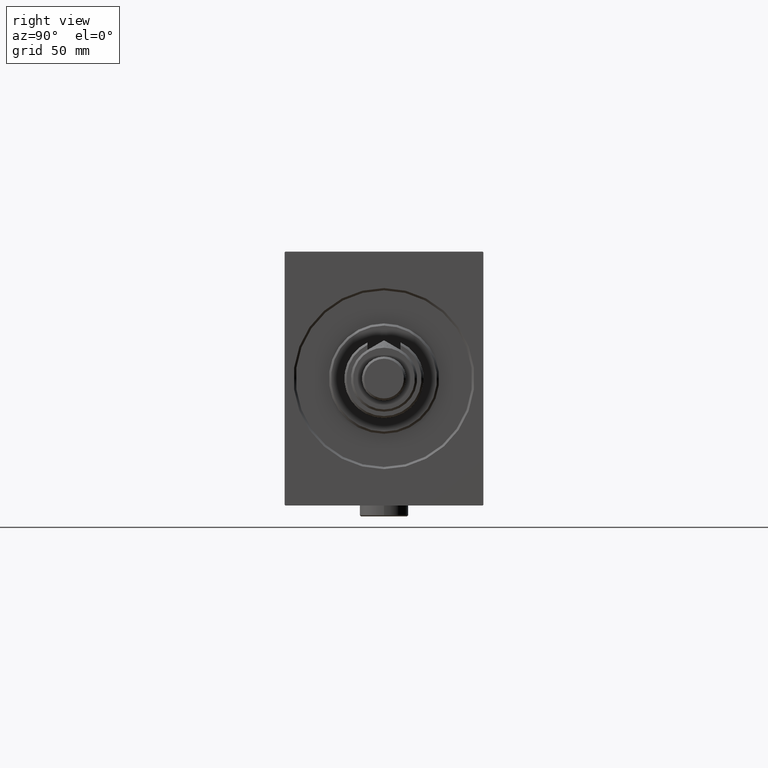
[diagram: clean part render]
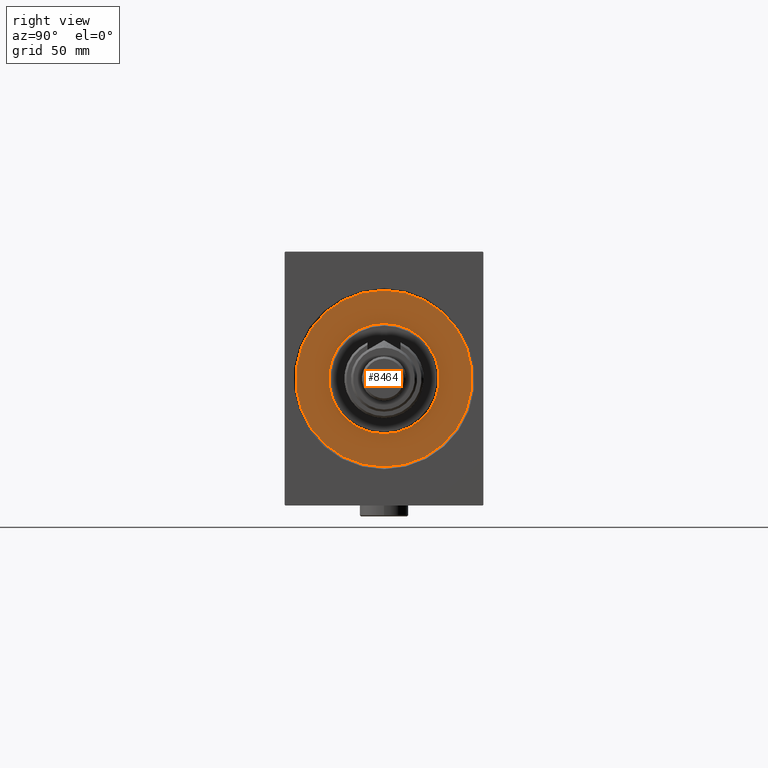
[diagram: same view with one face highlighted and labeled with its STEP entity id]
A machine part, right view. The second image highlights one B-rep face of the part: STEP entity #8464.
In plain terms, the highlighted planar face has unit normal (1, 0, 0).
Its self-contained STEP definition (entity closure, byte-faithful):
#443 = EDGE_LOOP ( 'NONE', ( #21321, #13933 ) ) ;
#901 = CARTESIAN_POINT ( 'NONE',  ( 0.000000000000000000, 0.000000000000000000, 0.000000000000000000 ) ) ;
#3298 = VERTEX_POINT ( 'NONE', #39831 ) ;
#5027 = CIRCLE ( 'NONE', #35547, 40.00000000000000000 ) ;
#5127 = DIRECTION ( 'NONE',  ( 0.000000000000000000, 0.000000000000000000, -1.000000000000000000 ) ) ;
#5195 = AXIS2_PLACEMENT_3D ( 'NONE', #12479, #45895, #27968 ) ;
#5724 = CARTESIAN_POINT ( 'NONE',  ( 0.000000000000000000, 0.000000000000000000, 0.000000000000000000 ) ) ;
#6703 = VERTEX_POINT ( 'NONE', #7353 ) ;
#7353 = CARTESIAN_POINT ( 'NONE',  ( 0.000000000000000000, 4.898587196589413026E-15, 40.00000000000000000 ) ) ;
#8464 = ADVANCED_FACE ( 'NONE', ( #10365, #25165 ), #39744, .T. ) ;
#8615 = DIRECTION ( 'NONE',  ( 0.000000000000000000, 0.000000000000000000, -1.000000000000000000 ) ) ;
#10365 = FACE_OUTER_BOUND ( 'NONE', #443, .T. ) ;
#12479 = CARTESIAN_POINT ( 'NONE',  ( 0.000000000000000000, 0.000000000000000000, 0.000000000000000000 ) ) ;
#13933 = ORIENTED_EDGE ( 'NONE', *, *, #32598, .T. ) ;
#15563 = ORIENTED_EDGE ( 'NONE', *, *, #30516, .F. ) ;
#18507 = EDGE_LOOP ( 'NONE', ( #15563, #22480 ) ) ;
#20061 = DIRECTION ( 'NONE',  ( 1.000000000000000000, -0.000000000000000000, 0.000000000000000000 ) ) ;
#20562 = CIRCLE ( 'NONE', #21309, 25.00000000000000000 ) ;
#21309 = AXIS2_PLACEMENT_3D ( 'NONE', #5724, #20061, #8615 ) ;
#21321 = ORIENTED_EDGE ( 'NONE', *, *, #38080, .T. ) ;
#21714 = CIRCLE ( 'NONE', #28603, 25.00000000000000000 ) ;
#22480 = ORIENTED_EDGE ( 'NONE', *, *, #45324, .F. ) ;
#24936 = DIRECTION ( 'NONE',  ( 1.000000000000000000, 0.000000000000000000, 0.000000000000000000 ) ) ;
#24947 = VERTEX_POINT ( 'NONE', #32801 ) ;
#25165 = FACE_BOUND ( 'NONE', #18507, .T. ) ;
#27085 = CARTESIAN_POINT ( 'NONE',  ( 0.000000000000000000, 0.000000000000000000, 0.000000000000000000 ) ) ;
#27968 = DIRECTION ( 'NONE',  ( 0.000000000000000000, 0.000000000000000000, -1.000000000000000000 ) ) ;
#28603 = AXIS2_PLACEMENT_3D ( 'NONE', #27085, #41669, #5127 ) ;
#30243 = DIRECTION ( 'NONE',  ( 1.000000000000000000, 0.000000000000000000, 0.000000000000000000 ) ) ;
#30516 = EDGE_CURVE ( 'NONE', #44652, #3298, #21714, .T. ) ;
#32598 = EDGE_CURVE ( 'NONE', #6703, #24947, #5027, .T. ) ;
#32801 = CARTESIAN_POINT ( 'NONE',  ( 0.000000000000000000, 0.000000000000000000, -40.00000000000000000 ) ) ;
#32998 = AXIS2_PLACEMENT_3D ( 'NONE', #36626, #24936, #33256 ) ;
#33256 = DIRECTION ( 'NONE',  ( 0.000000000000000000, 0.000000000000000000, -1.000000000000000000 ) ) ;
#35547 = AXIS2_PLACEMENT_3D ( 'NONE', #901, #30243, #40774 ) ;
#36626 = CARTESIAN_POINT ( 'NONE',  ( 0.000000000000000000, 0.000000000000000000, 0.000000000000000000 ) ) ;
#38080 = EDGE_CURVE ( 'NONE', #24947, #6703, #42593, .T. ) ;
#39744 = PLANE ( 'NONE',  #32998 ) ;
#39831 = CARTESIAN_POINT ( 'NONE',  ( 0.000000000000000000, 3.061616997868383043E-15, -25.00000000000000000 ) ) ;
#40774 = DIRECTION ( 'NONE',  ( 0.000000000000000000, 0.000000000000000000, -1.000000000000000000 ) ) ;
#41669 = DIRECTION ( 'NONE',  ( 1.000000000000000000, -0.000000000000000000, 0.000000000000000000 ) ) ;
#42593 = CIRCLE ( 'NONE', #5195, 40.00000000000000000 ) ;
#44652 = VERTEX_POINT ( 'NONE', #46181 ) ;
#45324 = EDGE_CURVE ( 'NONE', #3298, #44652, #20562, .T. ) ;
#45895 = DIRECTION ( 'NONE',  ( 1.000000000000000000, 0.000000000000000000, 0.000000000000000000 ) ) ;
#46181 = CARTESIAN_POINT ( 'NONE',  ( 0.000000000000000000, 0.000000000000000000, 25.00000000000000000 ) ) ;